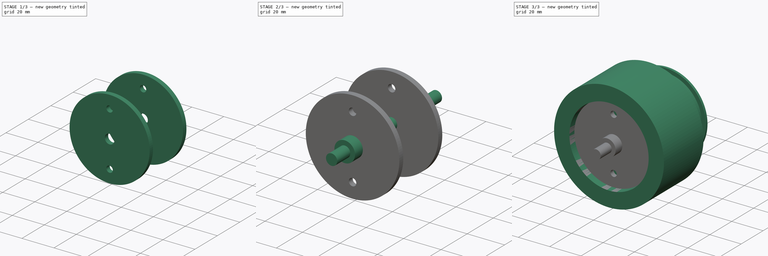
[diagram: build sequence overview — one tinted view per stage of 3, left to right]
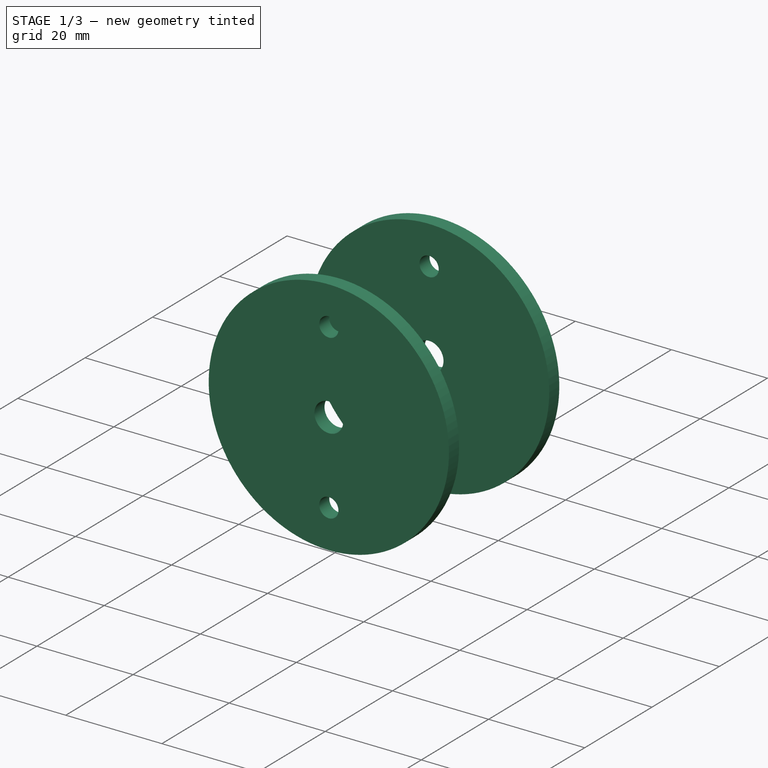
[diagram: stage 1 of 3 — iso view after this stage's code; geometry added in this stage tinted green]
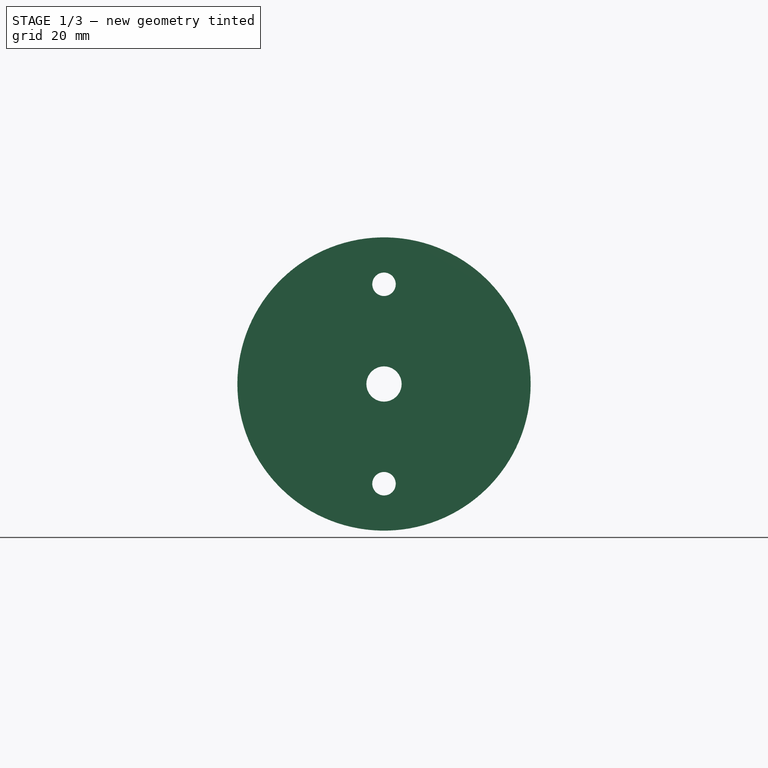
[diagram: stage 1 of 3 — front view after this stage's code; geometry added in this stage tinted green]
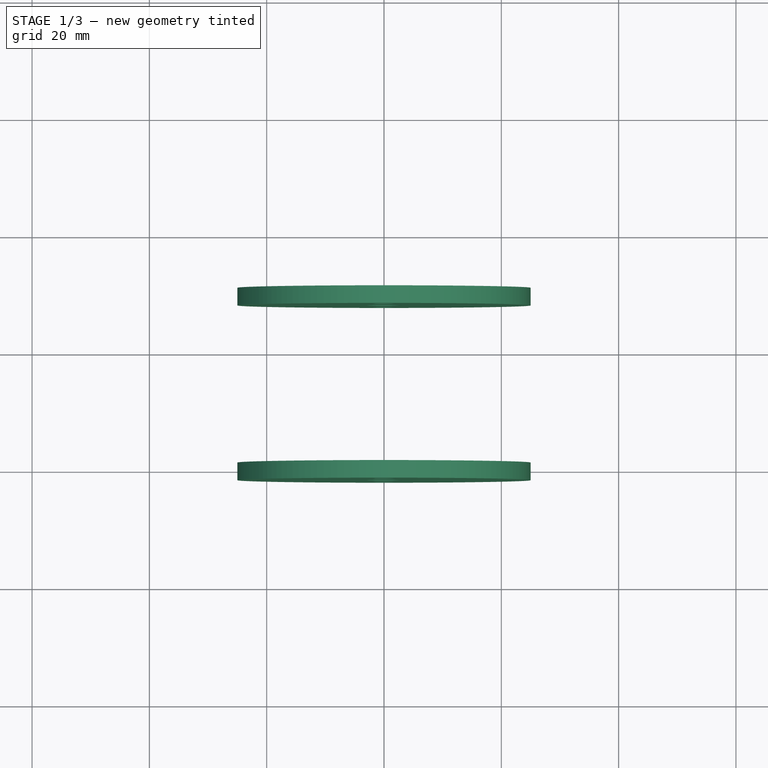
[diagram: stage 1 of 3 — top view after this stage's code; geometry added in this stage tinted green]
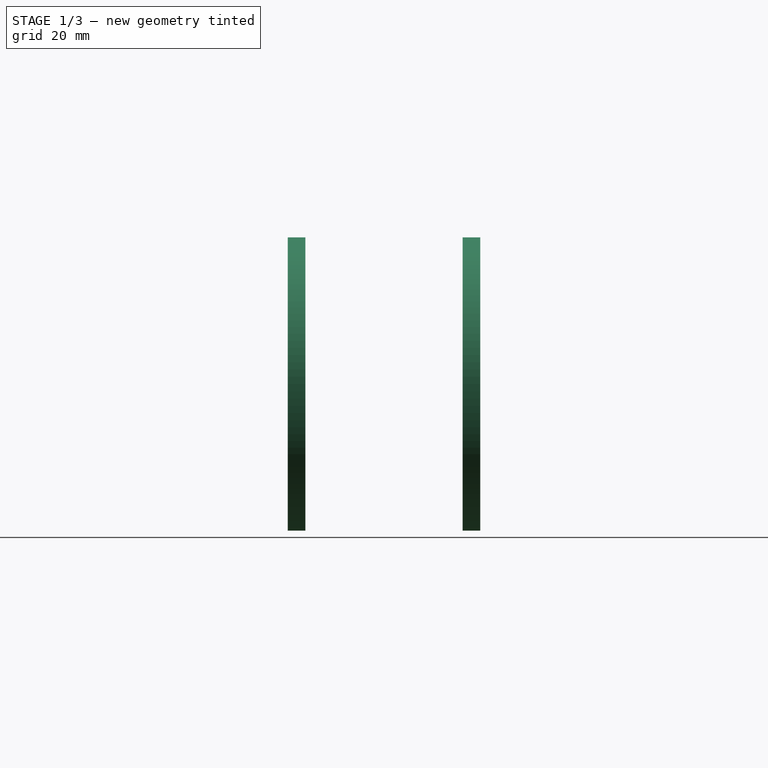
[diagram: stage 1 of 3 — right view after this stage's code; geometry added in this stage tinted green]
FCSTD DOCUMENT  (FreeCAD 0.15R4669 (Git))
Label: BR_assemblageRoue
License: All rights reserved
LicenseURL: http://en.wikipedia.org/wiki/All_rights_reserved
objects: Part::Feature×2, Sketcher::SketchObject×2, Part::Revolution×2, Part::FeaturePython×2, Part::MultiFuse×1
note: 9 computed .brp shape members not serialized (recipe doc carries the construction recipe); baked Part::Feature solids carry a one-line shape summary decoded from their .brp

FEATURE [Part::FeaturePython] Clone  label="plaqueRouePoulie"  # WARN: FeaturePython — macro-defined, semantics opaque (R4)
  Placement = pos=(0,8,0) rot=(0,0,1;0rad)
  Scale = (1,1,1)
FEATURE [Part::FeaturePython] Clone001  label="plaqueRoueExt"  # WARN: FeaturePython — macro-defined, semantics opaque (R4)
  Placement = pos=(0,-21.8,0) rot=(0,0,1;0rad)
  Scale = (1,1,1)
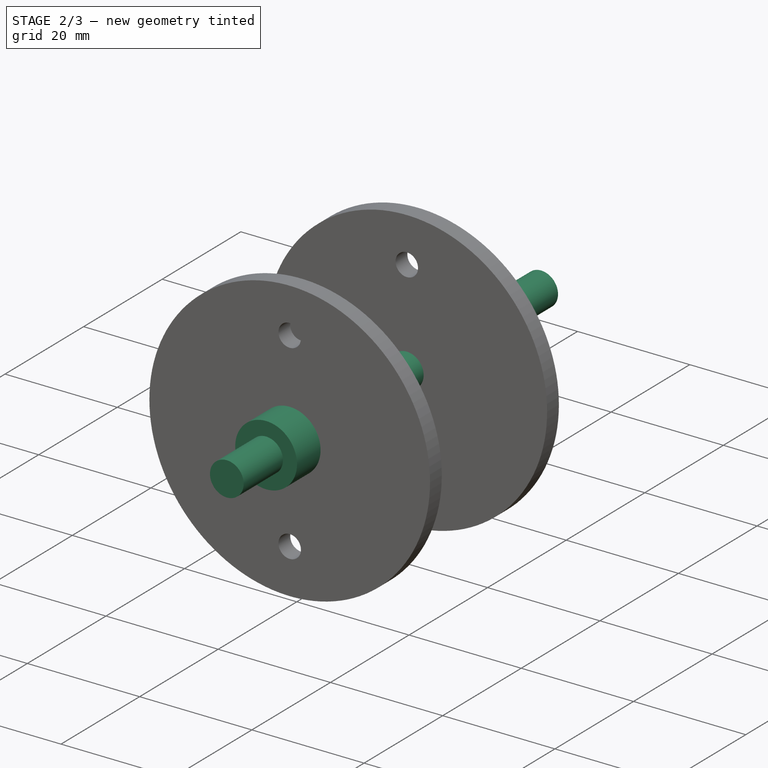
[diagram: stage 2 of 3 — iso view after this stage's code; geometry added in this stage tinted green]
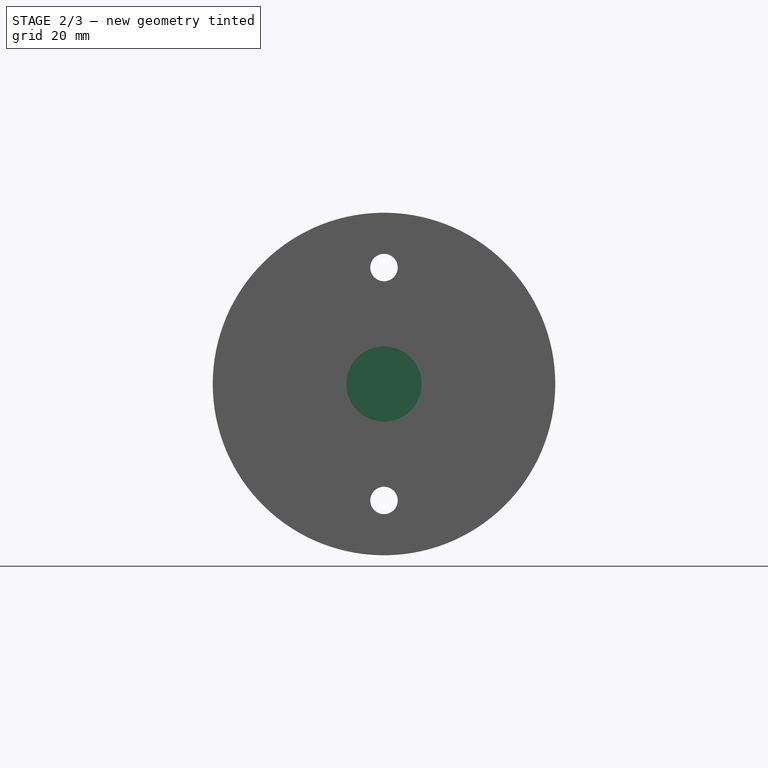
[diagram: stage 2 of 3 — front view after this stage's code; geometry added in this stage tinted green]
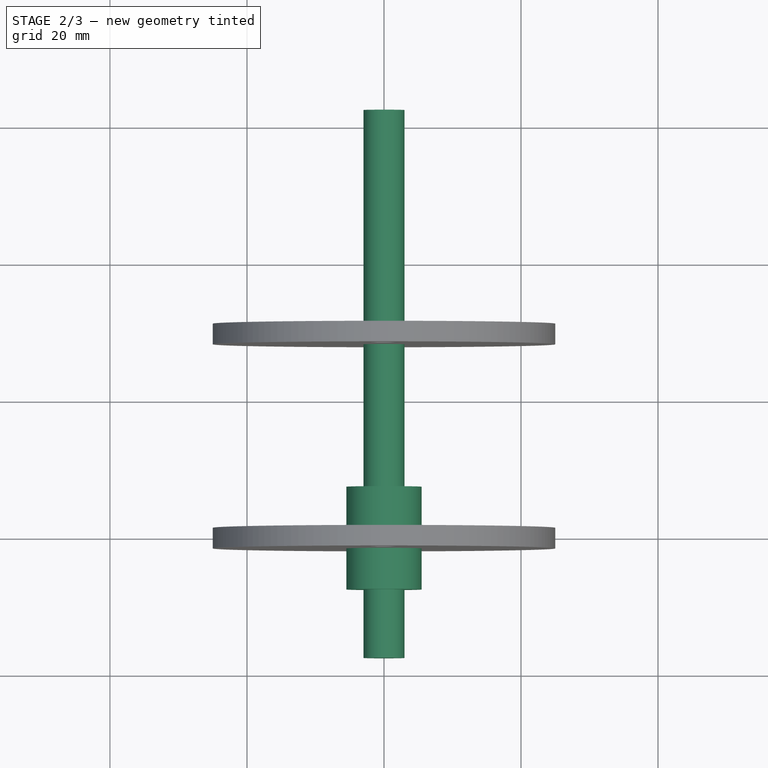
[diagram: stage 2 of 3 — top view after this stage's code; geometry added in this stage tinted green]
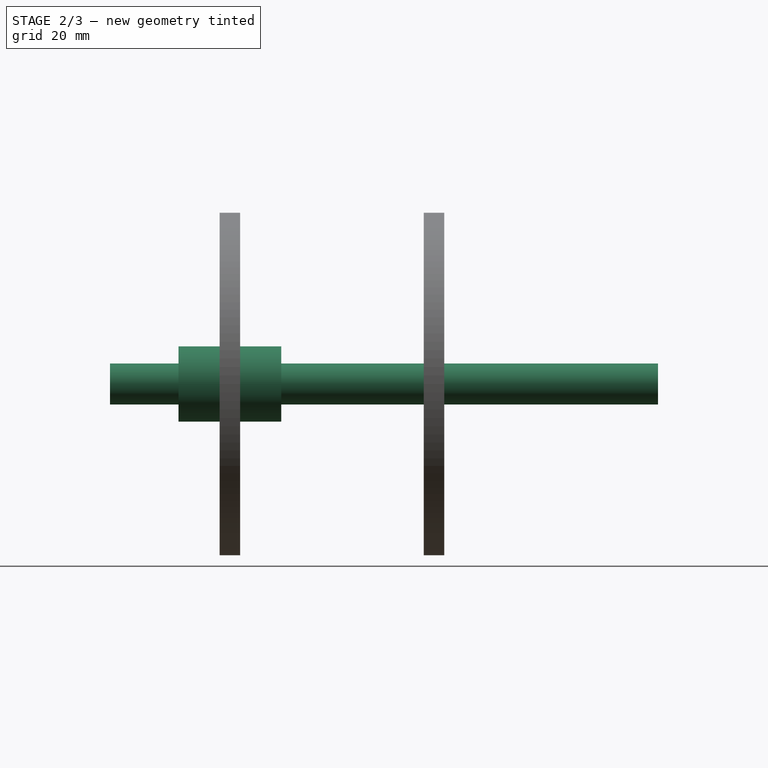
[diagram: stage 2 of 3 — right view after this stage's code; geometry added in this stage tinted green]
FEATURE [Sketcher::SketchObject] Sketch001  label="coupeAxeRoue"
  sketch-geometry (13):
    g0: LineSegment StartX=0 StartY=42.2 StartZ=0 EndX=3 EndY=42.2 EndZ=0
    g1: LineSegment StartX=3 StartY=42.2 StartZ=0 EndX=3 EndY=32.2 EndZ=0
    g2: LineSegment StartX=3 StartY=-27.8 StartZ=0 EndX=3 EndY=-37.8 EndZ=0
    g3: LineSegment StartX=3 StartY=-37.8 StartZ=0 EndX=0 EndY=-37.8 EndZ=0
    g4: LineSegment StartX=0 StartY=-37.8 StartZ=0 EndX=0 EndY=42.2 EndZ=0
    g5: LineSegment StartX=3 StartY=32.2 StartZ=0 EndX=3 EndY=-12.8 EndZ=0
    g6: LineSegment StartX=3 StartY=-12.8 StartZ=0 EndX=5.5 EndY=-12.8 EndZ=0
    g7: LineSegment StartX=5.5 StartY=-12.8 StartZ=0 EndX=5.5 EndY=-18.8 EndZ=0
    g8: LineSegment StartX=5.5 StartY=-18.8 StartZ=0 EndX=3 EndY=-18.8 EndZ=0
    g9: LineSegment StartX=3 StartY=-18.8 StartZ=0 EndX=3 EndY=-21.8 EndZ=0
    g10: LineSegment StartX=3 StartY=-21.8 StartZ=0 EndX=5.5 EndY=-21.8 EndZ=0
    g11: LineSegment StartX=5.5 StartY=-21.8 StartZ=0 EndX=5.5 EndY=-27.8 EndZ=0
    g12: LineSegment StartX=5.5 StartY=-27.8 StartZ=0 EndX=3 EndY=-27.8 EndZ=0
  constraints (39):
    c: PointOnObject(g0,g-2)
    c: Horizontal(g0)
    c: Coincident(g0,g1)
    c: Vertical(g1)
    c: Vertical(g2)
    c: Coincident(g2,g3)
    c: Horizontal(g3)
    c: Coincident(g3,g4)
    c: Coincident(g4,g0)
    c: Vertical(g4)
    c: DistanceX(g0) = 3
    c: Equal(g1,g2)
    c: DistanceY(g1) = -10
    c: DistanceY(g-1,g0) = 42.2
    c: Coincident(g1,g5)
    c: Vertical(g5)
    c: Coincident(g5,g6)
    c: Horizontal(g6)
    c: Coincident(g6,g7)
    c: Vertical(g7)
    c: Coincident(g7,g8)
    c: Horizontal(g8)
    c: Coincident(g8,g9)
    c: Vertical(g9)
    c: Coincident(g9,g10)
    c: Horizontal(g10)
    c: Coincident(g10,g11)
    c: Vertical(g11)
    c: Coincident(g11,g12)
    c: Horizontal(g12)
    c: PointOnObject(g10,g7)
    c: Equal(g7,g11)
    c: DistanceY(g7) = -6
    c: DistanceX(g-1,g6) = 5.5
    c: Coincident(g2,g12)
    c: DistanceY(g9) = -3
    c: PointOnObject(g8,g1)
    c: PointOnObject(g2,g1)
    c: DistanceY(g1,g11) = -60
FEATURE [Part::Revolution] Revolve001  label="axeRoue"
  Angle = 360
  Axis = (0,1,0)
  Base = (0,0,0)
  Solid = true
  Source = -> Sketch001
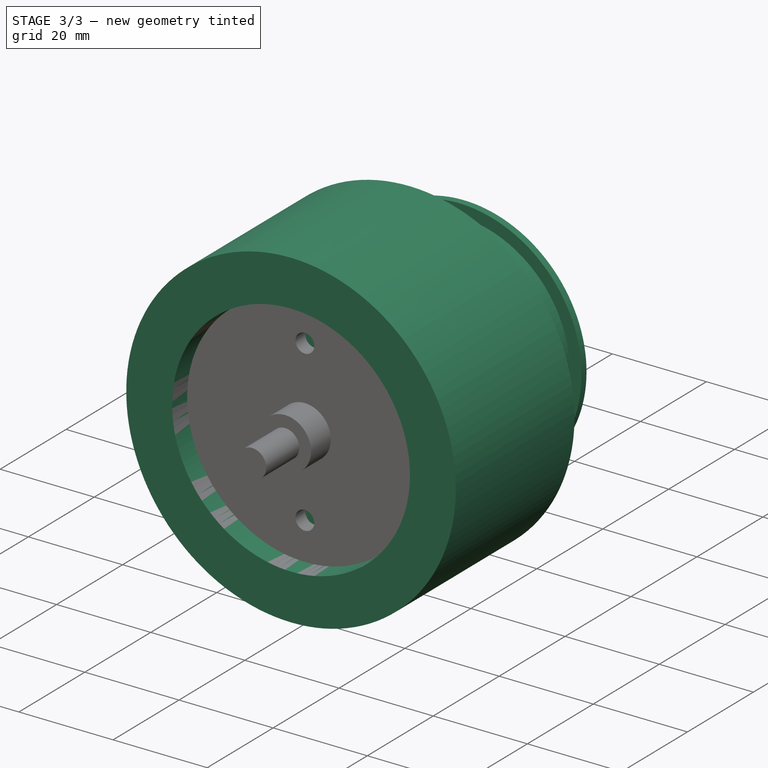
[diagram: stage 3 of 3 — iso view after this stage's code; geometry added in this stage tinted green]
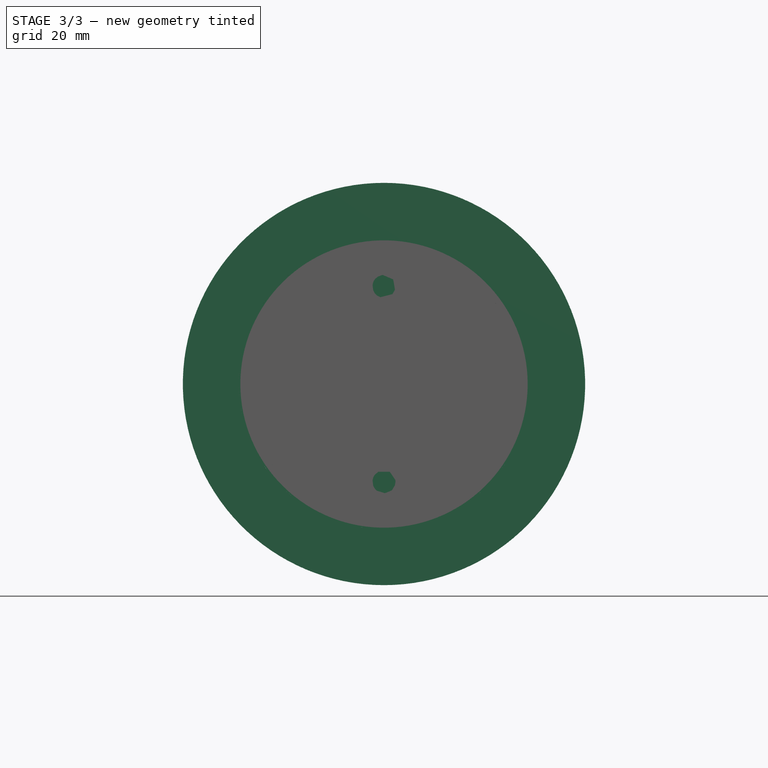
[diagram: stage 3 of 3 — front view after this stage's code; geometry added in this stage tinted green]
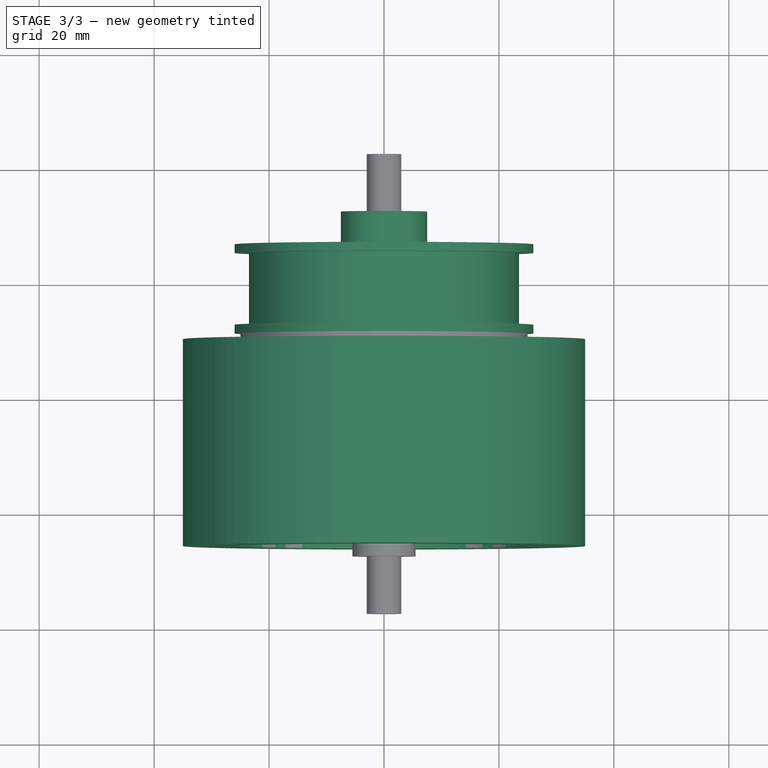
[diagram: stage 3 of 3 — top view after this stage's code; geometry added in this stage tinted green]
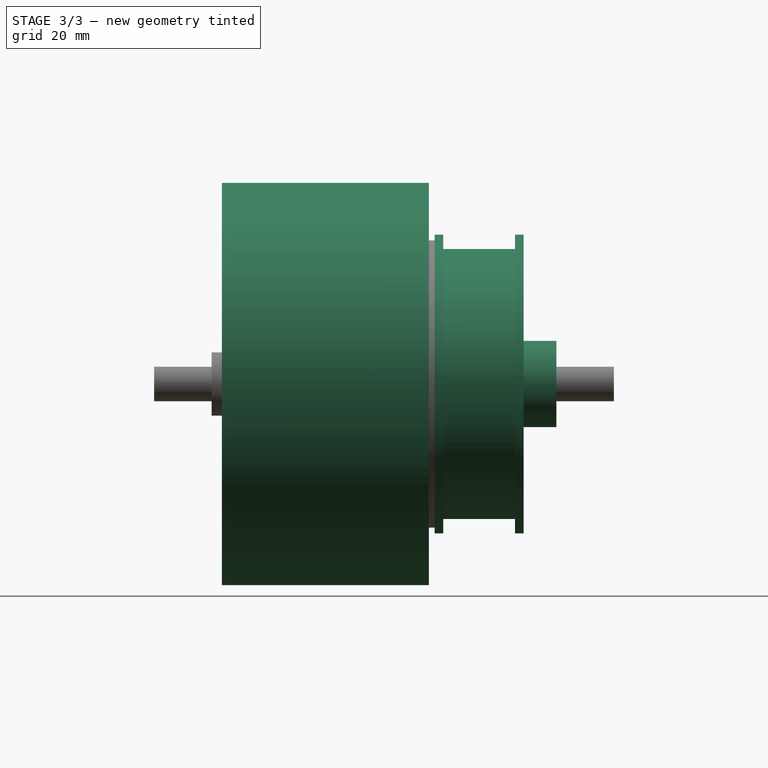
[diagram: stage 3 of 3 — right view after this stage's code; geometry added in this stage tinted green]
FEATURE [Part::Feature] Part__Feature  label="Roue"
  shape: bbox 70 x 36 x 70 mm, 116 faces (baked)
FEATURE [Sketcher::SketchObject] Sketch  label="coupeGrandePoulie"
  sketch-geometry (10):
    g0: LineSegment StartX=3 StartY=-10.6 StartZ=0 EndX=3 EndY=10.6 EndZ=0
    g1: LineSegment StartX=3 StartY=10.6 StartZ=0 EndX=7.5 EndY=10.6 EndZ=0
    g2: LineSegment StartX=7.5 StartY=10.6 StartZ=0 EndX=7.5 EndY=4.9 EndZ=0
    g3: LineSegment StartX=7.5 StartY=4.9 StartZ=0 EndX=26 EndY=4.9 EndZ=0
    g4: LineSegment StartX=26 StartY=4.9 StartZ=0 EndX=26 EndY=3.4 EndZ=0
    g5: LineSegment StartX=26 StartY=3.4 StartZ=0 EndX=23.5 EndY=3.4 EndZ=0
    g6: LineSegment StartX=23.5 StartY=3.4 StartZ=0 EndX=23.5 EndY=-9.1 EndZ=0
    g7: LineSegment StartX=23.5 StartY=-9.1 StartZ=0 EndX=26 EndY=-9.1 EndZ=0
    g8: LineSegment StartX=26 StartY=-9.1 StartZ=0 EndX=26 EndY=-10.6 EndZ=0
    g9: LineSegment StartX=26 StartY=-10.6 StartZ=0 EndX=3 EndY=-10.6 EndZ=0
  constraints (30):
    c: Vertical(g0)
    c: Coincident(g1,g0)
    c: Horizontal(g1)
    c: Coincident(g2,g1)
    c: Vertical(g2)
    c: Coincident(g3,g2)
    c: Horizontal(g3)
    c: Coincident(g4,g3)
    c: Vertical(g4)
    c: Coincident(g5,g4)
    c: Horizontal(g5)
    c: Coincident(g6,g5)
    c: Vertical(g6)
    c: Coincident(g7,g6)
    c: Horizontal(g7)
    c: Coincident(g8,g7)
    c: Vertical(g8)
    c: Coincident(g9,g8)
    c: Coincident(g9,g0)
    c: Horizontal(g9)
    c: PointOnObject(g4,g8)
    c: DistanceX(g-1,g0) = 3
    c: DistanceX(g-1,g1) = 7.5
    c: DistanceY(g3,g8) = -15.5
    c: DistanceY(g0,g0) = 21.2
    c: Symmetric(g0,g0,g-1)
    c: DistanceY(g6) = -12.5
    c: DistanceX(g-1,g5) = 23.5
    c: DistanceX(g-1,g8) = 26
    c: DistanceY(g8) = -1.5
FEATURE [Part::Revolution] Revolve  label="grandePoulie"
  Angle = 360
  Axis = (0,1,0)
  Base = (0,0,0)
  Placement = pos=(0,21.6,0) rot=(0,0,1;0rad)
  Solid = true
  Source = -> Sketch
FEATURE [Part::Feature] Extrude  label="plaqueRoueInt"
  Placement = pos=(0,-11.5,0) rot=(0,0,1;0rad)
  shape: bbox 50 x 3 x 50 mm, 6 faces (baked)
FEATURE [Part::MultiFuse] Fusion  label="assemblageRoue"
  Shapes = -> [Part__Feature,Revolve,Revolve001,Clone,Clone001,Extrude]
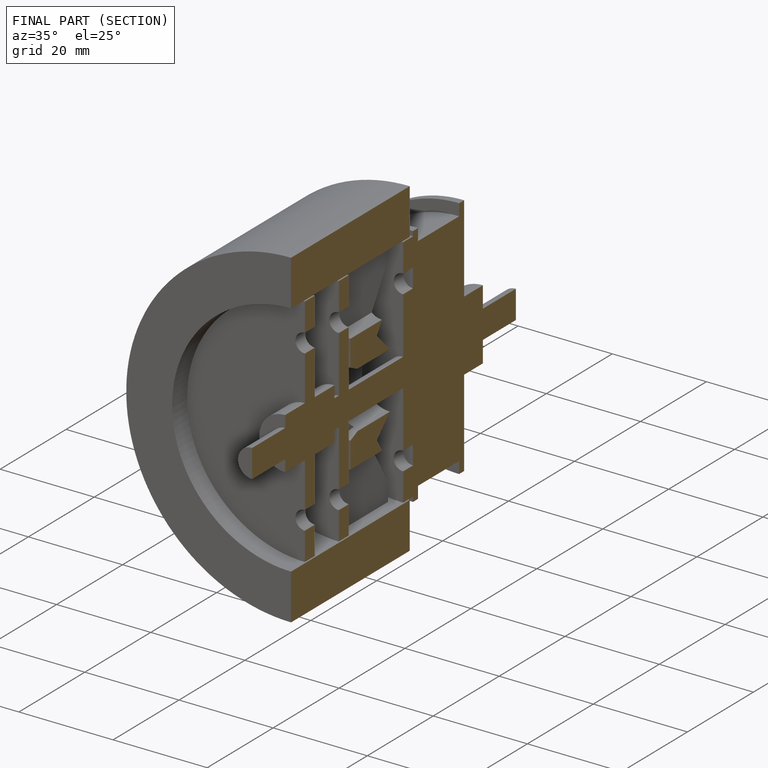
[diagram: finished part — half-section view (interior)]
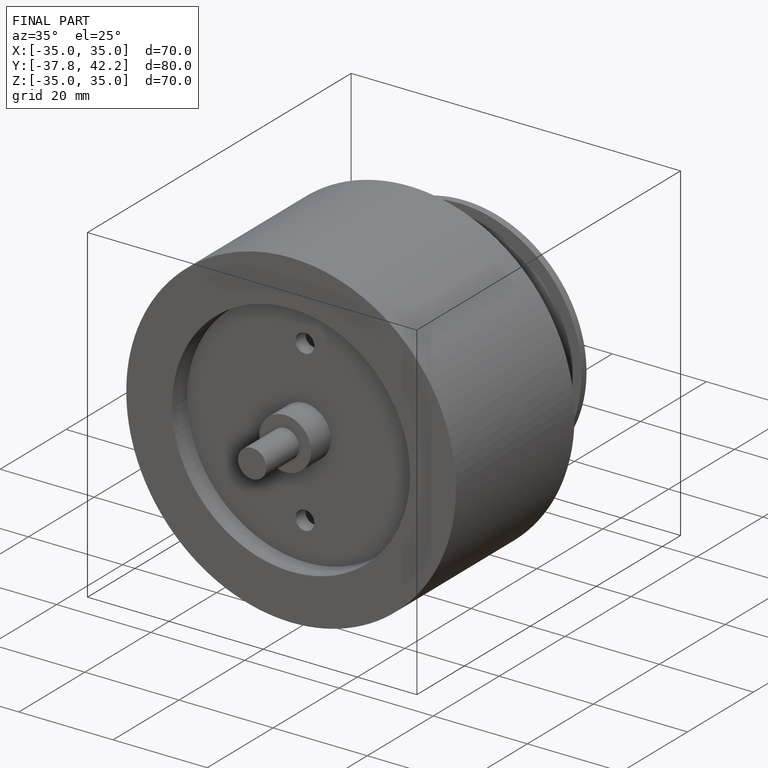
[diagram: finished part — iso view with bounding-box wireframe]
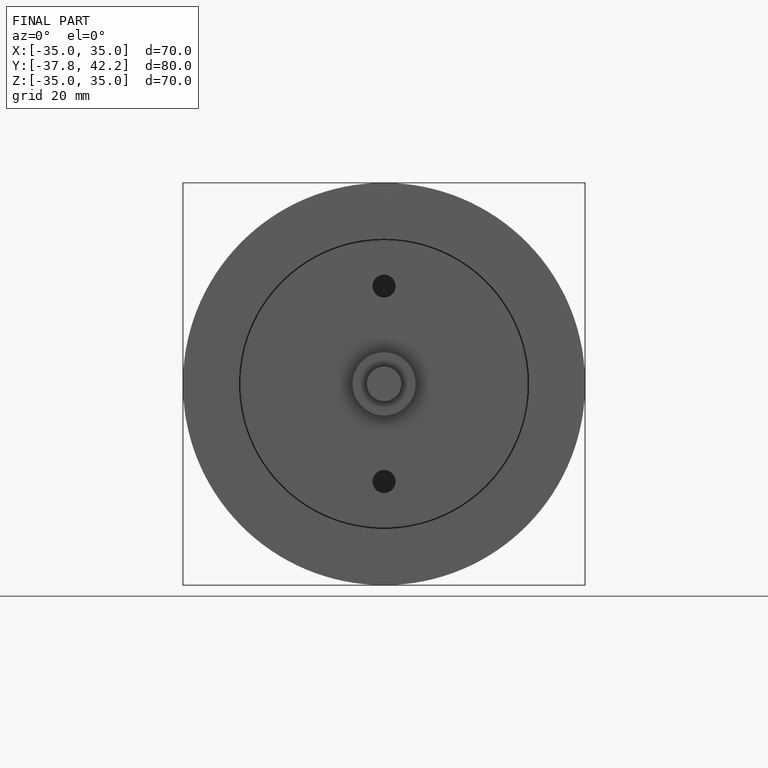
[diagram: finished part — front view with bounding-box wireframe]
